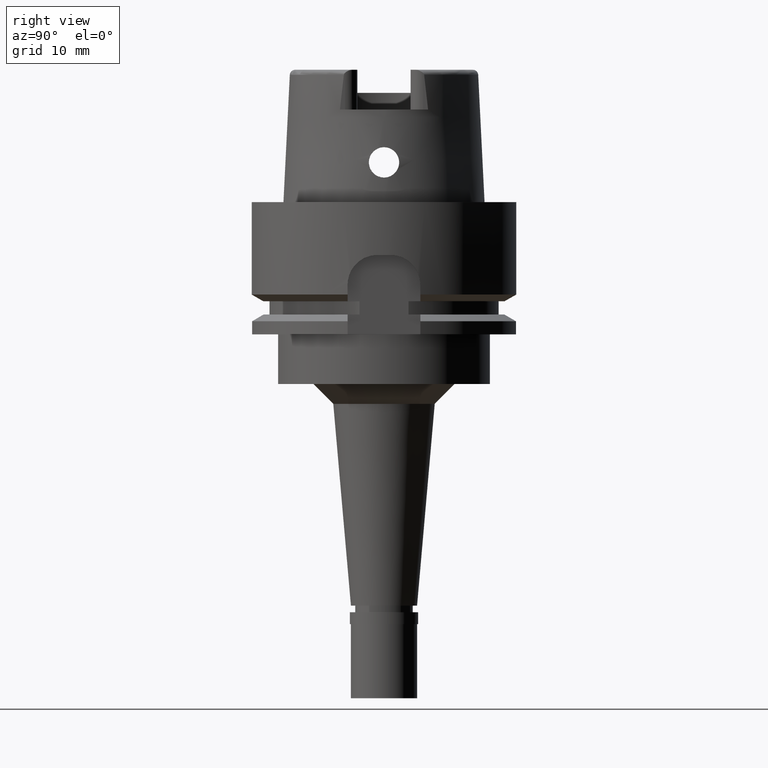
[diagram: clean part render]
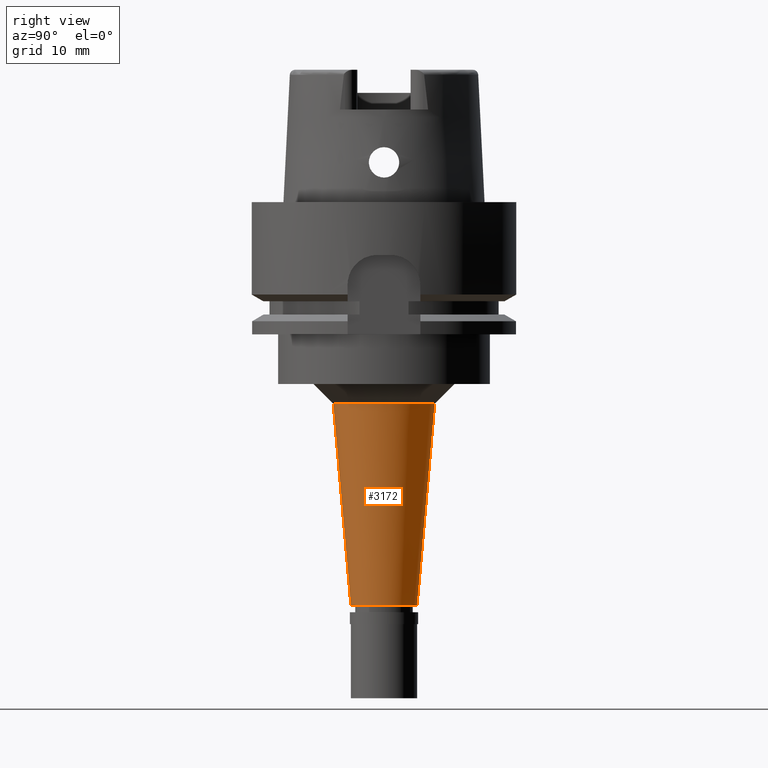
[diagram: same view with one face highlighted and labeled with its STEP entity id]
A machine part, right view. The second image highlights one B-rep face of the part: STEP entity #3172.
In plain terms, the highlighted conical surface has half-angle 5 deg.
Its self-contained STEP definition (entity closure, byte-faithful):
#35 = CARTESIAN_POINT ( 'NONE',  ( 0.0000000000000000000, -7.668404237540999979, -30.50000000000000000 ) ) ;
#61 = ORIENTED_EDGE ( 'NONE', *, *, #2201, .T. ) ;
#66 = DIRECTION ( 'NONE',  ( 0.0000000000000000000, 0.0000000000000000000, 1.000000000000000000 ) ) ;
#383 = AXIS2_PLACEMENT_3D ( 'NONE', #4579, #4206, #2593 ) ;
#488 = EDGE_CURVE ( 'NONE', #1143, #3392, #3478, .T. ) ;
#490 = VERTEX_POINT ( 'NONE', #2169 ) ;
#673 = CARTESIAN_POINT ( 'NONE',  ( 0.0000000000000000000, 0.0000000000000000000, -30.50000000000000000 ) ) ;
#875 = EDGE_CURVE ( 'NONE', #490, #1143, #3202, .T. ) ;
#884 = AXIS2_PLACEMENT_3D ( 'NONE', #673, #3618, #2415 ) ;
#1143 = VERTEX_POINT ( 'NONE', #1349 ) ;
#1235 = EDGE_CURVE ( 'NONE', #3457, #3392, #2515, .T. ) ;
#1349 = CARTESIAN_POINT ( 'NONE',  ( 0.0000000000000000000, 7.668404237540999979, -30.50000000000000000 ) ) ;
#1847 = CARTESIAN_POINT ( 'NONE',  ( 0.0000000000000000000, 7.668404237540999979, -30.50000000000000000 ) ) ;
#2126 = LINE ( 'NONE', #35, #4969 ) ;
#2169 = CARTESIAN_POINT ( 'NONE',  ( 0.0000000000000000000, -7.668404237540999979, -30.50000000000000000 ) ) ;
#2201 = EDGE_CURVE ( 'NONE', #490, #3457, #2126, .T. ) ;
#2415 = DIRECTION ( 'NONE',  ( 0.0000000000000000000, -1.000000000000000000, 0.0000000000000000000 ) ) ;
#2515 = CIRCLE ( 'NONE', #4208, 5.000000000000000000 ) ;
#2593 = DIRECTION ( 'NONE',  ( 0.0000000000000000000, 1.000000000000000000, 0.0000000000000000000 ) ) ;
#2704 = CONICAL_SURFACE ( 'NONE', #383, 6.334202118770000389, 0.08726646259969973729 ) ;
#2726 = ORIENTED_EDGE ( 'NONE', *, *, #488, .F. ) ;
#3053 = DIRECTION ( 'NONE',  ( 0.0000000000000000000, -0.08715574274767391716, -0.9961946980917442129 ) ) ;
#3172 = ADVANCED_FACE ( 'NONE', ( #5065 ), #2704, .T. ) ;
#3202 = CIRCLE ( 'NONE', #884, 7.668404237539999890 ) ;
#3212 = CARTESIAN_POINT ( 'NONE',  ( 0.0000000000000000000, -5.000000000000000000, -61.00000000000000000 ) ) ;
#3392 = VERTEX_POINT ( 'NONE', #4570 ) ;
#3393 = DIRECTION ( 'NONE',  ( 0.0000000000000000000, -1.000000000000000000, 0.0000000000000000000 ) ) ;
#3457 = VERTEX_POINT ( 'NONE', #3212 ) ;
#3478 = LINE ( 'NONE', #1847, #4794 ) ;
#3618 = DIRECTION ( 'NONE',  ( 0.0000000000000000000, 0.0000000000000000000, 1.000000000000000000 ) ) ;
#3630 = EDGE_LOOP ( 'NONE', ( #4458, #61, #4470, #2726 ) ) ;
#4206 = DIRECTION ( 'NONE',  ( 0.0000000000000000000, 0.0000000000000000000, 1.000000000000000000 ) ) ;
#4208 = AXIS2_PLACEMENT_3D ( 'NONE', #4552, #66, #3393 ) ;
#4458 = ORIENTED_EDGE ( 'NONE', *, *, #875, .F. ) ;
#4470 = ORIENTED_EDGE ( 'NONE', *, *, #1235, .T. ) ;
#4552 = CARTESIAN_POINT ( 'NONE',  ( 0.0000000000000000000, 0.0000000000000000000, -61.00000000000000000 ) ) ;
#4570 = CARTESIAN_POINT ( 'NONE',  ( 0.0000000000000000000, 5.000000000000000000, -61.00000000000000000 ) ) ;
#4579 = CARTESIAN_POINT ( 'NONE',  ( 0.0000000000000000000, 0.0000000000000000000, -45.75000000000000000 ) ) ;
#4794 = VECTOR ( 'NONE', #3053, 1000.000000000000000 ) ;
#4913 = DIRECTION ( 'NONE',  ( 0.0000000000000000000, 0.08715574274767391716, -0.9961946980917442129 ) ) ;
#4969 = VECTOR ( 'NONE', #4913, 1000.000000000000000 ) ;
#5065 = FACE_OUTER_BOUND ( 'NONE', #3630, .T. ) ;